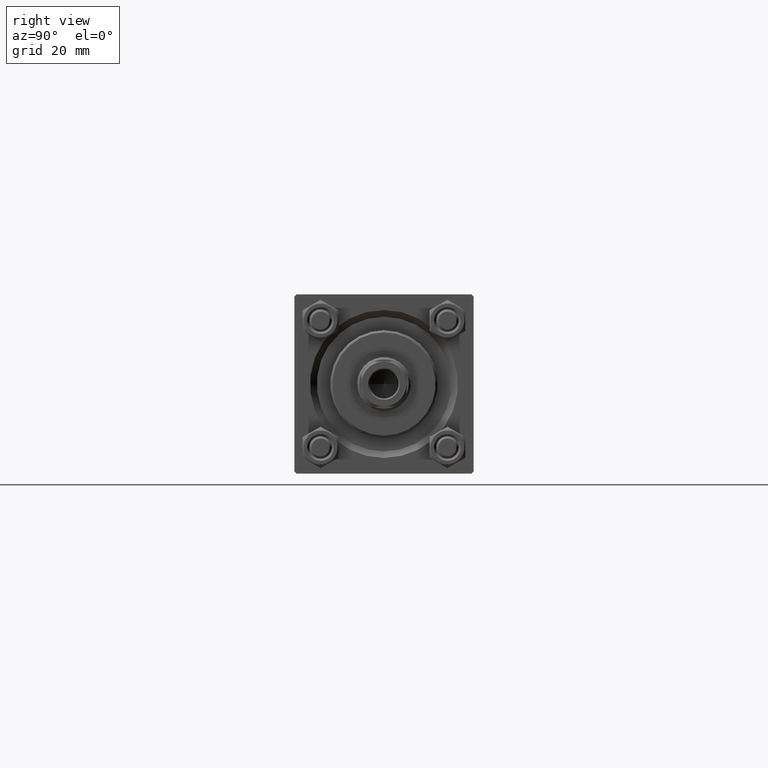
[diagram: clean part render]
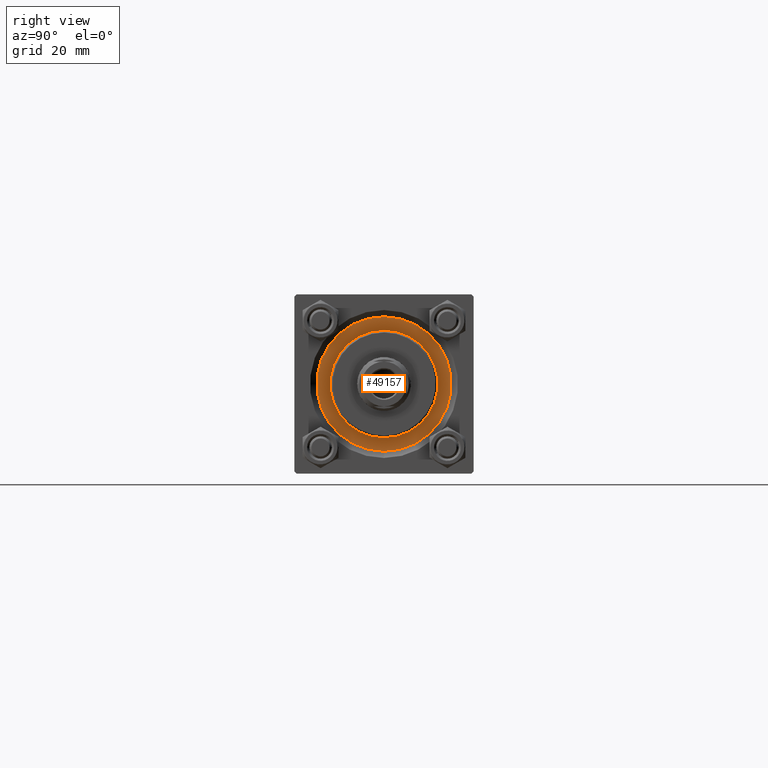
[diagram: same view with one face highlighted and labeled with its STEP entity id]
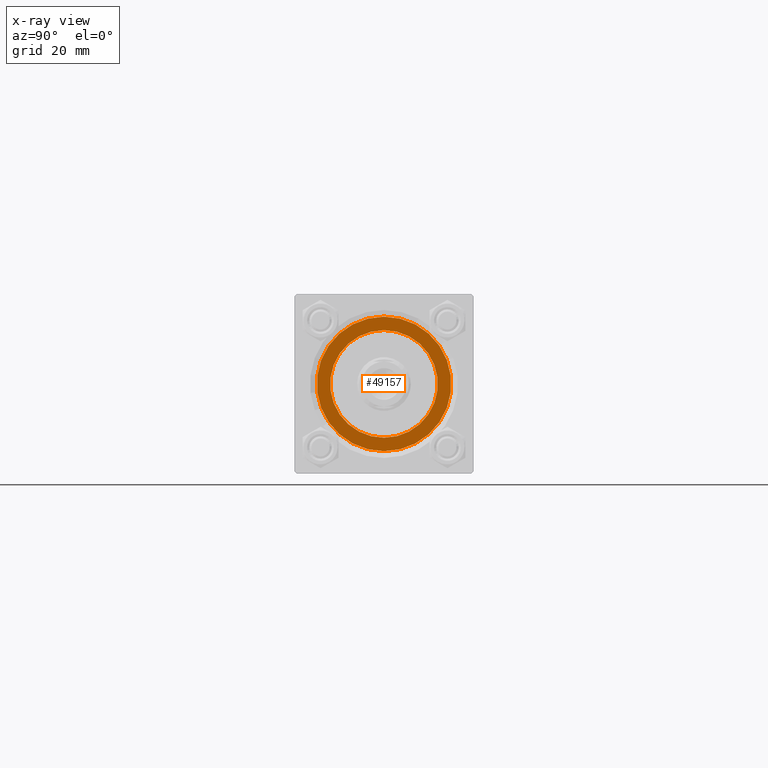
[diagram: x-ray of the same camera — body ghosted, the highlighted face saturated]
A machine part, right view. The second image highlights one B-rep face of the part: STEP entity #49157.
The next image is the same camera in x-ray: the body ghosted, the highlighted face saturated — about 0% of this face is hidden behind the body in this view.
In plain terms, the highlighted planar face has unit normal (1, 0, -0).
Its self-contained STEP definition (entity closure, byte-faithful):
#2653 = AXIS2_PLACEMENT_3D ( 'NONE', #26586, #34381, #18800 ) ;
#2832 = ORIENTED_EDGE ( 'NONE', *, *, #5590, .T. ) ;
#3116 = AXIS2_PLACEMENT_3D ( 'NONE', #36482, #21129, #35479 ) ;
#4036 = VERTEX_POINT ( 'NONE', #39237 ) ;
#5590 = EDGE_CURVE ( 'NONE', #41253, #46403, #11700, .T. ) ;
#7078 = EDGE_LOOP ( 'NONE', ( #40742, #2832 ) ) ;
#8751 = CIRCLE ( 'NONE', #3116, 12.00000000000000178 ) ;
#10612 = VERTEX_POINT ( 'NONE', #49439 ) ;
#11700 = CIRCLE ( 'NONE', #39021, 15.00000000000000000 ) ;
#13098 = DIRECTION ( 'NONE',  ( 0.000000000000000000, 0.000000000000000000, 1.000000000000000000 ) ) ;
#14682 = AXIS2_PLACEMENT_3D ( 'NONE', #28969, #13098, #27959 ) ;
#15624 = EDGE_LOOP ( 'NONE', ( #22849, #29515 ) ) ;
#16892 = FACE_BOUND ( 'NONE', #15624, .T. ) ;
#17281 = DIRECTION ( 'NONE',  ( 0.000000000000000000, 0.000000000000000000, 1.000000000000000000 ) ) ;
#18800 = DIRECTION ( 'NONE',  ( 1.000000000000000000, 0.000000000000000000, 0.000000000000000000 ) ) ;
#21129 = DIRECTION ( 'NONE',  ( 0.000000000000000000, 0.000000000000000000, 1.000000000000000000 ) ) ;
#22204 = CARTESIAN_POINT ( 'NONE',  ( 0.000000000000000000, 0.000000000000000000, 28.69999999999999929 ) ) ;
#22849 = ORIENTED_EDGE ( 'NONE', *, *, #35680, .F. ) ;
#22870 = EDGE_CURVE ( 'NONE', #10612, #4036, #8751, .T. ) ;
#24433 = PLANE ( 'NONE',  #14682 ) ;
#25077 = DIRECTION ( 'NONE',  ( 1.000000000000000000, 0.000000000000000000, 0.000000000000000000 ) ) ;
#25725 = DIRECTION ( 'NONE',  ( 1.000000000000000000, 0.000000000000000000, 0.000000000000000000 ) ) ;
#26586 = CARTESIAN_POINT ( 'NONE',  ( 0.000000000000000000, 0.000000000000000000, 28.69999999999999929 ) ) ;
#27641 = CIRCLE ( 'NONE', #28427, 15.00000000000000000 ) ;
#27959 = DIRECTION ( 'NONE',  ( 1.000000000000000000, 0.000000000000000000, -0.000000000000000000 ) ) ;
#28427 = AXIS2_PLACEMENT_3D ( 'NONE', #22204, #44855, #25725 ) ;
#28711 = FACE_OUTER_BOUND ( 'NONE', #7078, .T. ) ;
#28969 = CARTESIAN_POINT ( 'NONE',  ( 0.000000000000000000, 0.000000000000000000, 28.69999999999999929 ) ) ;
#29515 = ORIENTED_EDGE ( 'NONE', *, *, #22870, .F. ) ;
#32881 = CARTESIAN_POINT ( 'NONE',  ( 0.000000000000000000, 0.000000000000000000, 28.69999999999999929 ) ) ;
#33196 = CIRCLE ( 'NONE', #2653, 12.00000000000000178 ) ;
#34381 = DIRECTION ( 'NONE',  ( 0.000000000000000000, 0.000000000000000000, 1.000000000000000000 ) ) ;
#35479 = DIRECTION ( 'NONE',  ( 1.000000000000000000, 0.000000000000000000, 0.000000000000000000 ) ) ;
#35680 = EDGE_CURVE ( 'NONE', #4036, #10612, #33196, .T. ) ;
#36482 = CARTESIAN_POINT ( 'NONE',  ( 0.000000000000000000, 0.000000000000000000, 28.69999999999999929 ) ) ;
#38529 = EDGE_CURVE ( 'NONE', #46403, #41253, #27641, .T. ) ;
#39021 = AXIS2_PLACEMENT_3D ( 'NONE', #32881, #17281, #25077 ) ;
#39237 = CARTESIAN_POINT ( 'NONE',  ( -12.00000000000000178, 0.000000000000000000, 28.69999999999999929 ) ) ;
#40742 = ORIENTED_EDGE ( 'NONE', *, *, #38529, .T. ) ;
#41253 = VERTEX_POINT ( 'NONE', #48920 ) ;
#42071 = CARTESIAN_POINT ( 'NONE',  ( -15.00000000000000000, 0.000000000000000000, 28.69999999999999929 ) ) ;
#44855 = DIRECTION ( 'NONE',  ( 0.000000000000000000, 0.000000000000000000, 1.000000000000000000 ) ) ;
#46403 = VERTEX_POINT ( 'NONE', #42071 ) ;
#48920 = CARTESIAN_POINT ( 'NONE',  ( 15.00000000000000000, 1.836970198721029589E-15, 28.69999999999999929 ) ) ;
#49157 = ADVANCED_FACE ( 'NONE', ( #16892, #28711 ), #24433, .T. ) ;
#49439 = CARTESIAN_POINT ( 'NONE',  ( 12.00000000000000178, 1.469576158976824144E-15, 28.69999999999999929 ) ) ;